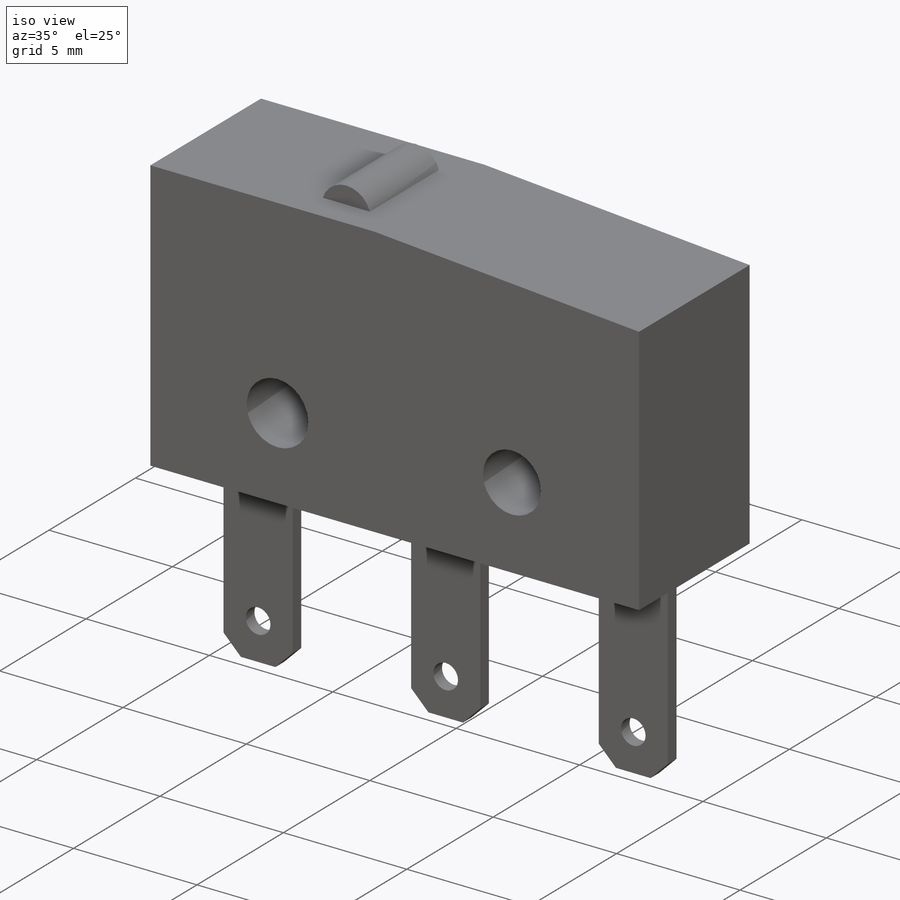
[diagram: iso view]
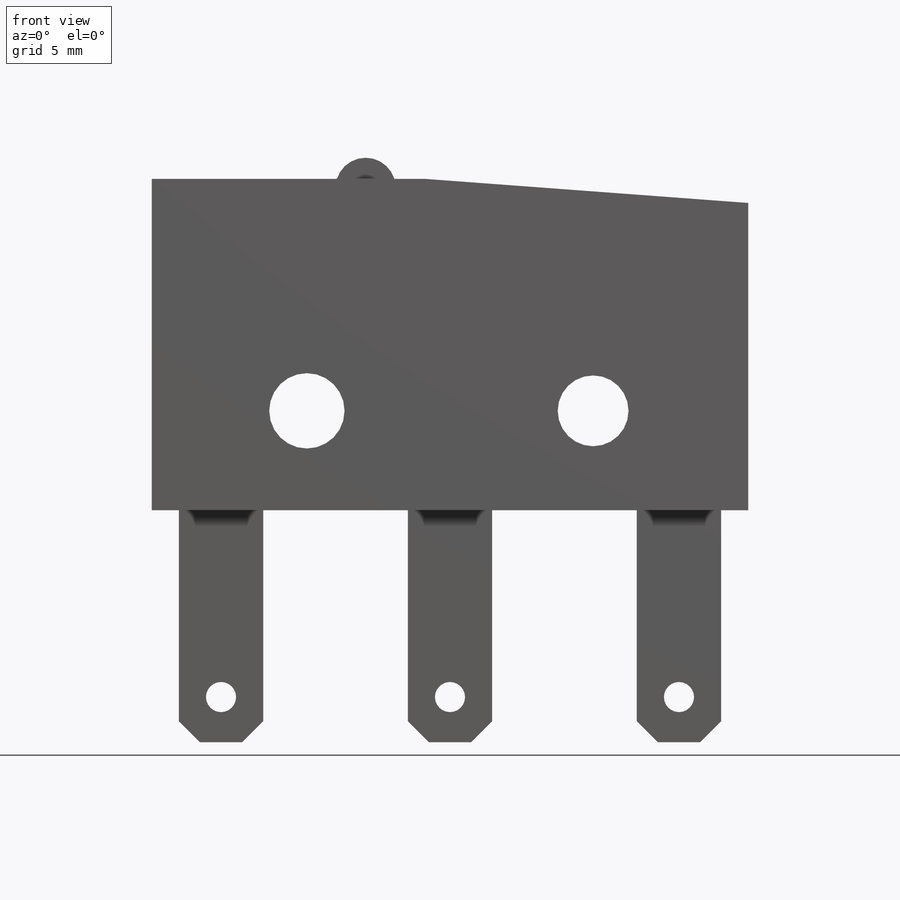
[diagram: front view]
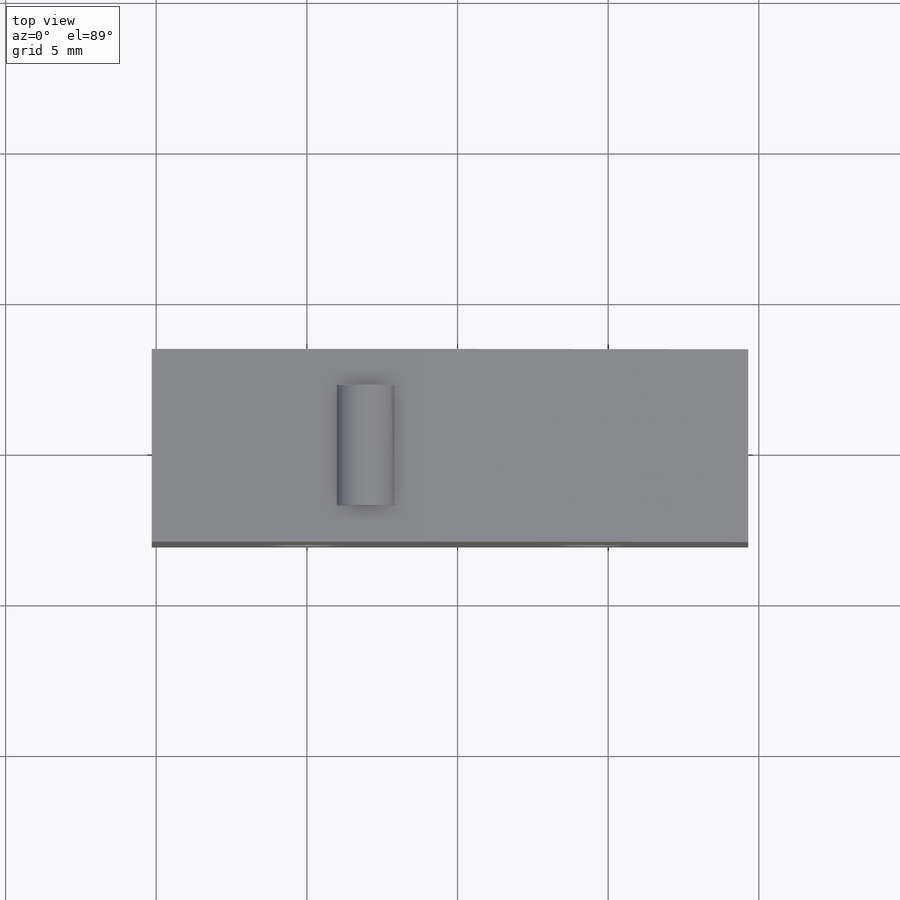
[diagram: top view]
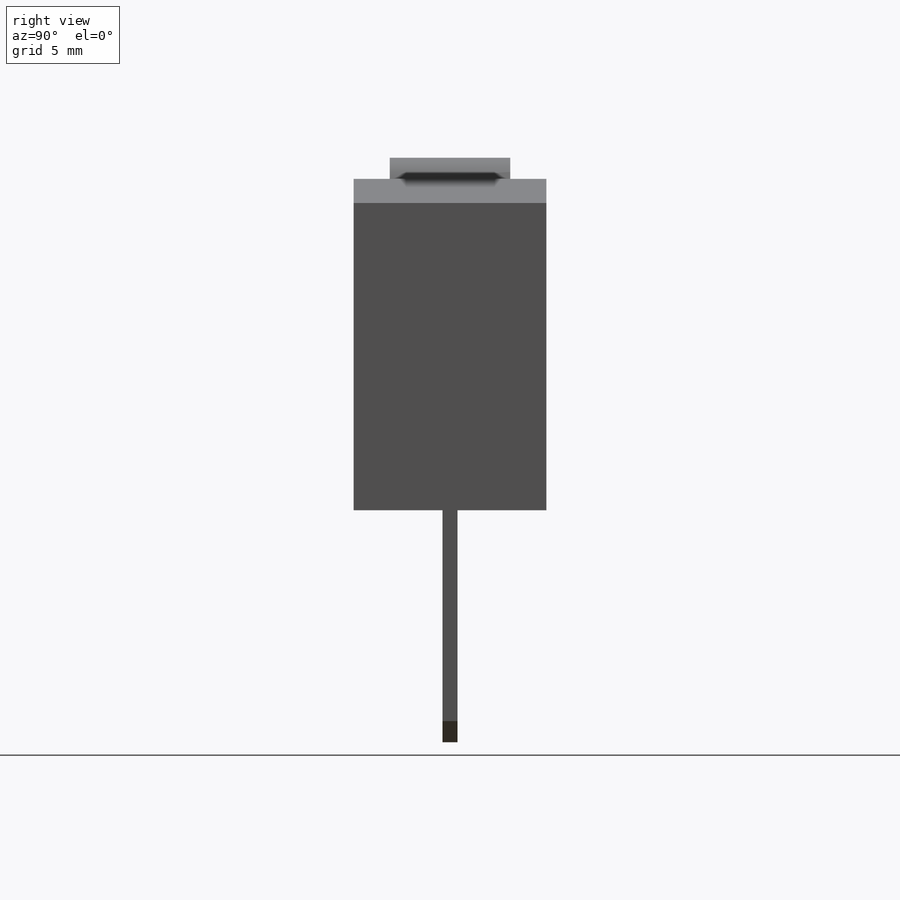
[diagram: right view]
SOLIDWORKS PART (.sldprt)
format: sldprt  version: not decoded by parser v0  size: 193,024 bytes
history: native  units: mm
features: sketch x3, extrude x2, material x1, cut_extrude x1 (+11 scaffold rows collapsed)
feature tree (18):
  scaffold x11  (default folders/planes/origin — collapsed)
  material  "Material <not specified>"
  sketch  "Sketch1"  dims[c1.D1=2.5mm c1.D2=2.35mm c1.D10=~3.453838mm c1.D9=1.0mm c1.D3=9.5mm c1.D4=5.15mm c1.D5=6.9mm c1.D6=7.7mm c1.D7=19.8mm c1.D8=3.3mm c2.D9=2.0mm c2.D10=8.4mm c2.D11=7.55mm c2.D12=1.0mm]
  extrude  "Boss-Extrude1"  Depth=6.4mm
  sketch  "Sketch2"  dims[D3=1.0mm D1=2.8mm D2=11.0mm D4=7.6mm D5=7.6mm D6=1.5mm]
  extrude  "Boss-Extrude2"  Depth=0.5mm
  sketch  "Sketch3"  dims[D1=1.2mm]
  cut_extrude  "Cut-Extrude1"  [1 undecoded]
decode coverage: 5 of 6 modeling features carry decoded parameters
note: ~ marks probable driven/reference dimensions
note: 1 parameter value undecoded
note: suppression state not decoded; provenance and decode notes live in map.json
